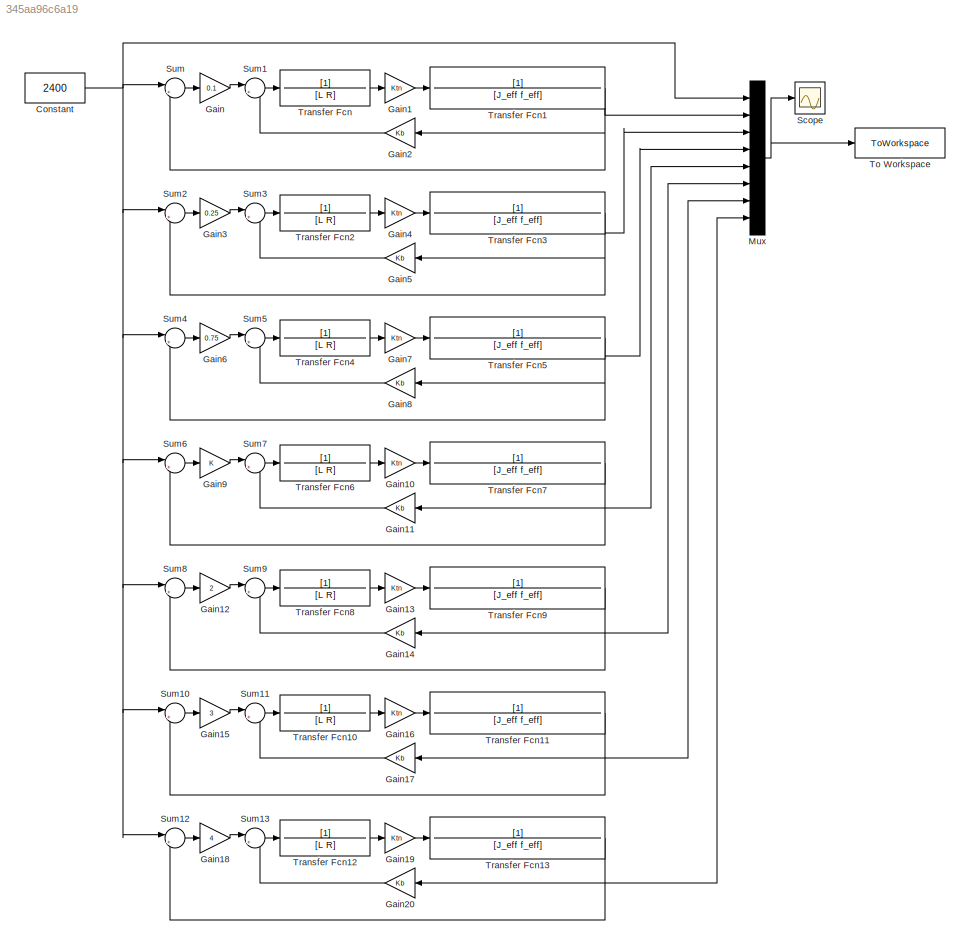
MODEL slx_345aa96c6a19
KIND model
CONFIG AbsTol = auto
CONFIG EnableMultiTasking = off
CONFIG FixedStep = auto
CONFIG MaxStep = auto
CONFIG MinStep = auto
CONFIG RelTol = 1e-3
CONFIG SampleTimeConstraint = Unconstrained
CONFIG SolverName = VariableStepAuto
CONFIG StartTime = 0.0
CONFIG StopTime = 0.35
BLOCK [Constant] Constant
  Value = 2400
BLOCK [Gain] Gain
  Gain = 0.1
BLOCK [Gain] Gain1
  Gain = Ktn
BLOCK [Gain] Gain10
  Gain = Ktn
BLOCK [Gain] Gain11
  Gain = Kb
BLOCK [Gain] Gain12
  Gain = 2
BLOCK [Gain] Gain13
  Gain = Ktn
BLOCK [Gain] Gain14
  Gain = Kb
BLOCK [Gain] Gain15
  Gain = 3
BLOCK [Gain] Gain16
  Gain = Ktn
BLOCK [Gain] Gain17
  Gain = Kb
BLOCK [Gain] Gain18
  Gain = 4
BLOCK [Gain] Gain19
  Gain = Ktn
BLOCK [Gain] Gain2
  Gain = Kb
BLOCK [Gain] Gain20
  Gain = Kb
BLOCK [Gain] Gain3
  Gain = 0.25
BLOCK [Gain] Gain4
  Gain = Ktn
BLOCK [Gain] Gain5
  Gain = Kb
BLOCK [Gain] Gain6
  Gain = 0.75
BLOCK [Gain] Gain7
  Gain = Ktn
BLOCK [Gain] Gain8
  Gain = Kb
BLOCK [Gain] Gain9
BLOCK [Mux] Mux
  DisplayOption = bar
  Inputs = 8
BLOCK [Scope] Scope
  Floating = off
  NumInputPorts = 1
  ScopeSpecificationString = Simulink.scopes.TimeScopeBlockCfg('CurrentConfiguration', extmgr.ConfigurationSet(extmgr.Configuration('Core','General UI',true),extmgr.Configuration('Core','Source UI',true),extmgr.Configuration('Sources','WiredSimulink',true),extmgr.Configuration('Visuals','Time Domain',true,'SerializedDisplays',{struct('MinYLimReal','-456.54527','MaxYLimReal','4108.90741','YLabelReal','','MinYLimMag',' 0.00000'...<+1486ch>
BLOCK [Sum] Sum
  Inputs = |+-
BLOCK [Sum] Sum1
  Inputs = |+-
BLOCK [Sum] Sum10
  Inputs = |+-
BLOCK [Sum] Sum11
  Inputs = |+-
BLOCK [Sum] Sum12
  Inputs = |+-
BLOCK [Sum] Sum13
  Inputs = |+-
BLOCK [Sum] Sum2
  Inputs = |+-
BLOCK [Sum] Sum3
  Inputs = |+-
BLOCK [Sum] Sum4
  Inputs = |+-
BLOCK [Sum] Sum5
  Inputs = |+-
BLOCK [Sum] Sum6
  Inputs = |+-
BLOCK [Sum] Sum7
  Inputs = |+-
BLOCK [Sum] Sum8
  Inputs = |+-
BLOCK [Sum] Sum9
  Inputs = |+-
BLOCK [ToWorkspace] To Workspace
  FixptAsFi = on
  MaxDataPoints = inf
  SampleTime = -1
  SaveFormat = Timeseries
  VariableName = DC
BLOCK [TransferFcn] Transfer Fcn
  Denominator = [L R]
BLOCK [TransferFcn] Transfer Fcn1
  Denominator = [J_eff f_eff]
BLOCK [TransferFcn] Transfer Fcn10
  Denominator = [L R]
BLOCK [TransferFcn] Transfer Fcn11
  Denominator = [J_eff f_eff]
BLOCK [TransferFcn] Transfer Fcn12
  Denominator = [L R]
BLOCK [TransferFcn] Transfer Fcn13
  Denominator = [J_eff f_eff]
BLOCK [TransferFcn] Transfer Fcn2
  Denominator = [L R]
BLOCK [TransferFcn] Transfer Fcn3
  Denominator = [J_eff f_eff]
BLOCK [TransferFcn] Transfer Fcn4
  Denominator = [L R]
BLOCK [TransferFcn] Transfer Fcn5
  Denominator = [J_eff f_eff]
BLOCK [TransferFcn] Transfer Fcn6
  Denominator = [L R]
BLOCK [TransferFcn] Transfer Fcn7
  Denominator = [J_eff f_eff]
BLOCK [TransferFcn] Transfer Fcn8
  Denominator = [L R]
BLOCK [TransferFcn] Transfer Fcn9
  Denominator = [J_eff f_eff]
NET Constant:1 -> Mux:1, Sum10:1, Sum12:1, Sum2:1, Sum4:1, Sum6:1, Sum8:1, Sum:1
LINE Gain10:1 -> Transfer Fcn7:1
LINE Gain11:1 -> Sum7:2
LINE Gain12:1 -> Sum9:1
LINE Gain13:1 -> Transfer Fcn9:1
LINE Gain14:1 -> Sum9:2
LINE Gain15:1 -> Sum11:1
LINE Gain16:1 -> Transfer Fcn11:1
LINE Gain17:1 -> Sum11:2
LINE Gain18:1 -> Sum13:1
LINE Gain19:1 -> Transfer Fcn13:1
LINE Gain1:1 -> Transfer Fcn1:1
LINE Gain20:1 -> Sum13:2
LINE Gain2:1 -> Sum1:2
LINE Gain3:1 -> Sum3:1
LINE Gain4:1 -> Transfer Fcn3:1
LINE Gain5:1 -> Sum3:2
LINE Gain6:1 -> Sum5:1
LINE Gain7:1 -> Transfer Fcn5:1
LINE Gain8:1 -> Sum5:2
LINE Gain9:1 -> Sum7:1
LINE Gain:1 -> Sum1:1
NET Mux:1 -> Scope:1, To Workspace:1
LINE Sum10:1 -> Gain15:1
LINE Sum11:1 -> Transfer Fcn10:1
LINE Sum12:1 -> Gain18:1
LINE Sum13:1 -> Transfer Fcn12:1
LINE Sum1:1 -> Transfer Fcn:1
LINE Sum2:1 -> Gain3:1
LINE Sum3:1 -> Transfer Fcn2:1
LINE Sum4:1 -> Gain6:1
LINE Sum5:1 -> Transfer Fcn4:1
LINE Sum6:1 -> Gain9:1
LINE Sum7:1 -> Transfer Fcn6:1
LINE Sum8:1 -> Gain12:1
LINE Sum9:1 -> Transfer Fcn8:1
LINE Sum:1 -> Gain:1
LINE Transfer Fcn10:1 -> Gain16:1
NET Transfer Fcn11:1 -> Gain17:1, Mux:7, Sum10:2
LINE Transfer Fcn12:1 -> Gain19:1
NET Transfer Fcn13:1 -> Gain20:1, Mux:8, Sum12:2
NET Transfer Fcn1:1 -> Gain2:1, Mux:2, Sum:2
LINE Transfer Fcn2:1 -> Gain4:1
NET Transfer Fcn3:1 -> Gain5:1, Mux:3, Sum2:2
LINE Transfer Fcn4:1 -> Gain7:1
NET Transfer Fcn5:1 -> Gain8:1, Mux:4, Sum4:2
LINE Transfer Fcn6:1 -> Gain10:1
NET Transfer Fcn7:1 -> Gain11:1, Mux:5, Sum6:2
LINE Transfer Fcn8:1 -> Gain13:1
NET Transfer Fcn9:1 -> Gain14:1, Mux:6, Sum8:2
LINE Transfer Fcn:1 -> Gain1:1
note: NET lines group one-source signal fan-out (src -> all destinations, sorted); 1:1 wires keep LINE
